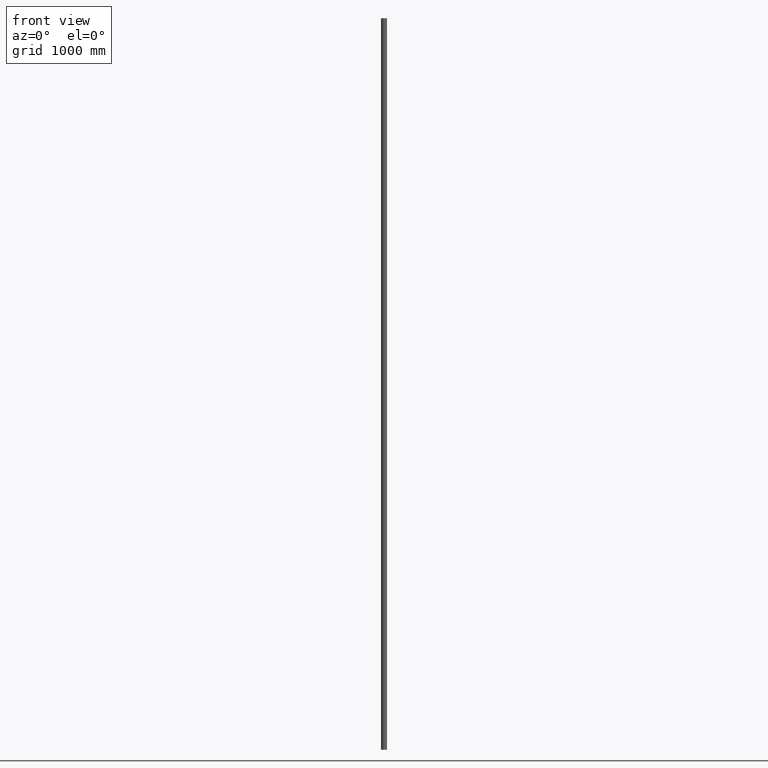
[diagram: clean part render]
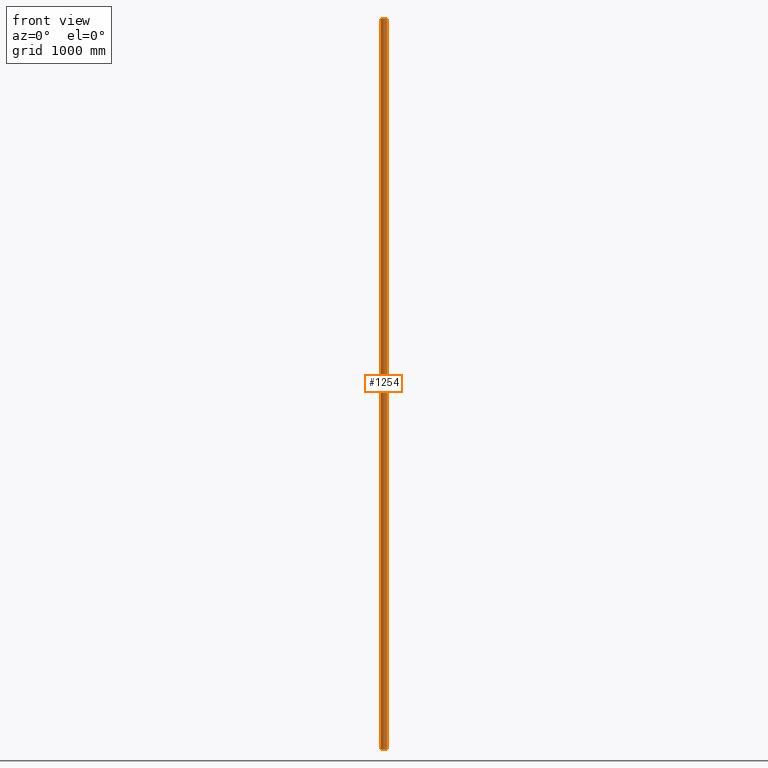
[diagram: same view with one face highlighted and labeled with its STEP entity id]
A machine part, front view. The second image highlights one B-rep face of the part: STEP entity #1254.
In plain terms, the highlighted cylindrical surface (bore or boss wall) has radius 24.15 mm, axis along (-0, -0, -1).
Its self-contained STEP definition (entity closure, byte-faithful):
#1101 = AXIS2_PLACEMENT_3D ( 'NONE', #11228, #13463, #1892 ) ;
#1254 = ADVANCED_FACE ( 'NONE', ( #11848, #12824 ), #2272, .T. ) ;
#1892 = DIRECTION ( 'NONE',  ( 1.000000000000000000, 0.000000000000000000, 0.000000000000000000 ) ) ;
#1974 = CARTESIAN_POINT ( 'NONE',  ( 24.14999999999999858, 0.000000000000000000, 3000.000000000000000 ) ) ;
#2272 = CYLINDRICAL_SURFACE ( 'NONE', #12238, 24.14999999999999858 ) ;
#3278 = EDGE_LOOP ( 'NONE', ( #8169 ) ) ;
#3564 = AXIS2_PLACEMENT_3D ( 'NONE', #9402, #6448, #11600 ) ;
#3963 = CIRCLE ( 'NONE', #3564, 24.14999999999999858 ) ;
#6448 = DIRECTION ( 'NONE',  ( 0.000000000000000000, 0.000000000000000000, 1.000000000000000000 ) ) ;
#7929 = CIRCLE ( 'NONE', #1101, 24.14999999999999858 ) ;
#7938 = DIRECTION ( 'NONE',  ( -0.000000000000000000, -0.000000000000000000, -1.000000000000000000 ) ) ;
#8169 = ORIENTED_EDGE ( 'NONE', *, *, #13587, .F. ) ;
#9037 = CARTESIAN_POINT ( 'NONE',  ( 0.000000000000000000, 0.000000000000000000, 3000.000000000000000 ) ) ;
#9082 = VERTEX_POINT ( 'NONE', #12572 ) ;
#9402 = CARTESIAN_POINT ( 'NONE',  ( 0.000000000000000000, 0.000000000000000000, -3000.000000000000000 ) ) ;
#9960 = DIRECTION ( 'NONE',  ( -1.000000000000000000, 0.000000000000000000, 0.000000000000000000 ) ) ;
#11129 = ORIENTED_EDGE ( 'NONE', *, *, #11638, .T. ) ;
#11228 = CARTESIAN_POINT ( 'NONE',  ( 0.000000000000000000, 0.000000000000000000, 3000.000000000000000 ) ) ;
#11600 = DIRECTION ( 'NONE',  ( 1.000000000000000000, 0.000000000000000000, 0.000000000000000000 ) ) ;
#11638 = EDGE_CURVE ( 'NONE', #9082, #9082, #3963, .T. ) ;
#11848 = FACE_OUTER_BOUND ( 'NONE', #3278, .T. ) ;
#11888 = EDGE_LOOP ( 'NONE', ( #11129 ) ) ;
#12238 = AXIS2_PLACEMENT_3D ( 'NONE', #9037, #7938, #9960 ) ;
#12572 = CARTESIAN_POINT ( 'NONE',  ( 24.14999999999999858, 0.000000000000000000, -3000.000000000000000 ) ) ;
#12824 = FACE_OUTER_BOUND ( 'NONE', #11888, .T. ) ;
#13009 = VERTEX_POINT ( 'NONE', #1974 ) ;
#13463 = DIRECTION ( 'NONE',  ( 0.000000000000000000, 0.000000000000000000, 1.000000000000000000 ) ) ;
#13587 = EDGE_CURVE ( 'NONE', #13009, #13009, #7929, .T. ) ;